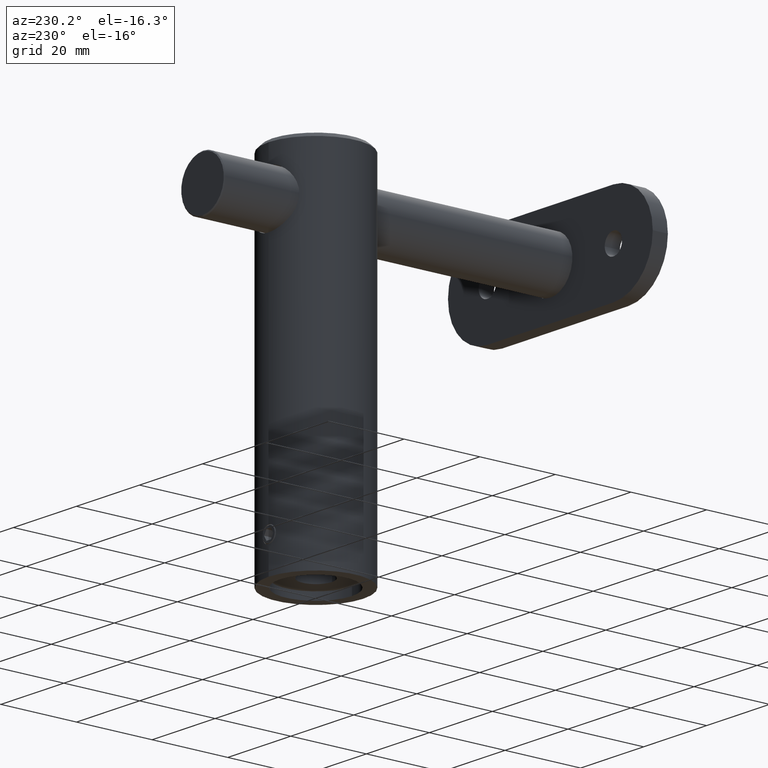
[diagram: clean part render]
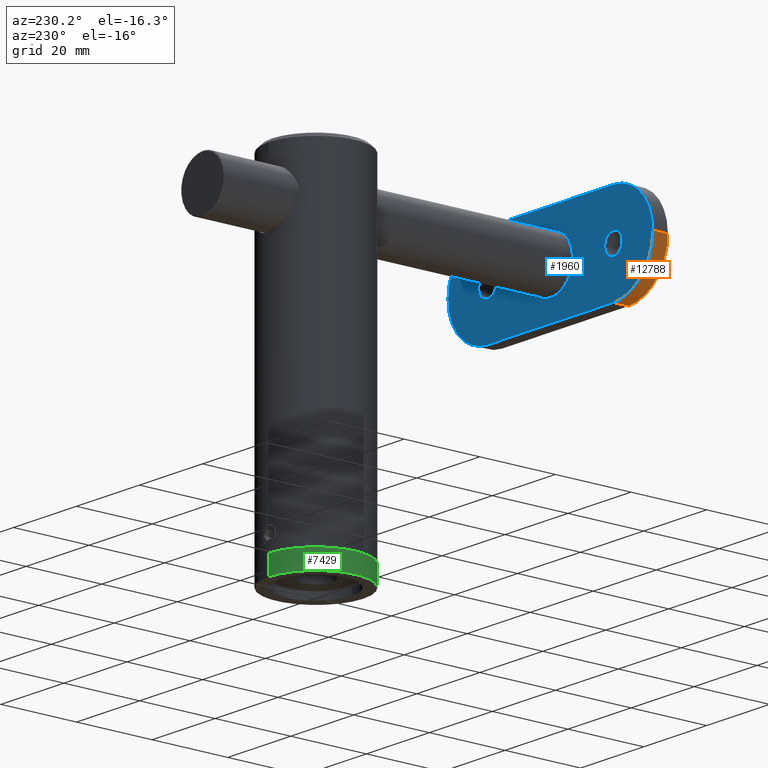
[diagram: same view with three faces highlighted in distinct colors, each labeled with its STEP entity id]
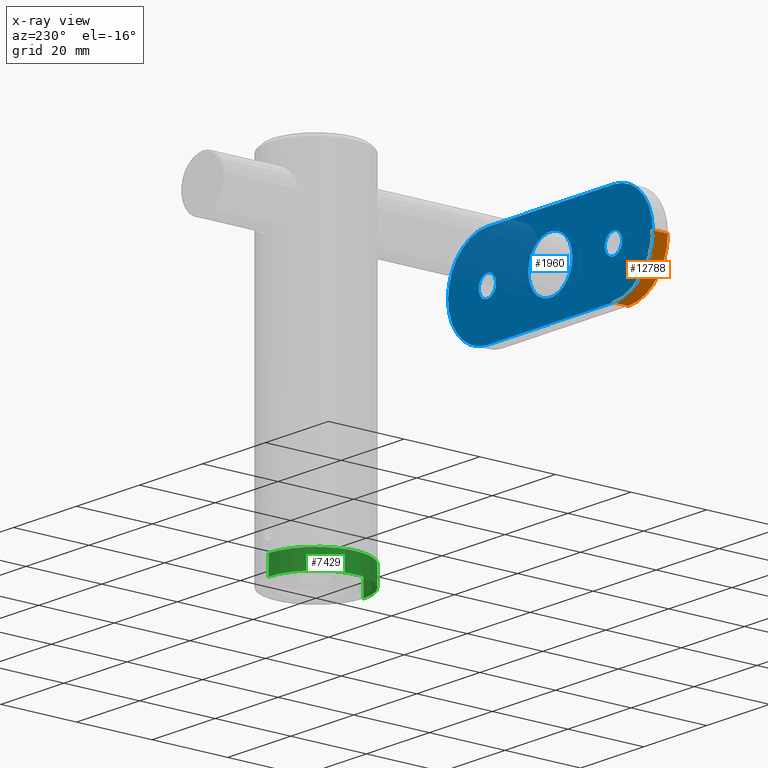
[diagram: x-ray of the same camera — body ghosted, the three highlighted faces saturated]
A machine part, auxiliary view with three faces highlighted in distinct colors.
The next image is the same camera in x-ray (body ghosted, the three faces saturated) — at least one of them is partly hidden behind the body in this view.
Their STEP definitions:

[orange] entity #12788 — the highlighted cylindrical surface (partial cylindrical patch) has radius 12.5 mm, axis along (-0, 1, -0).
#353 = CARTESIAN_POINT ( 'NONE',  ( 0.000000000000000000, 0.000000000000000000, 20.00000000000000000 ) ) ;
#1165 = VERTEX_POINT ( 'NONE', #12166 ) ;
#1495 = ORIENTED_EDGE ( 'NONE', *, *, #9786, .F. ) ;
#1995 = DIRECTION ( 'NONE',  ( 0.000000000000000000, -1.000000000000000000, 0.000000000000000000 ) ) ;
#2235 = DIRECTION ( 'NONE',  ( 0.000000000000000000, 1.000000000000000000, 0.000000000000000000 ) ) ;
#3309 = LINE ( 'NONE', #3579, #17203 ) ;
#3579 = CARTESIAN_POINT ( 'NONE',  ( 12.49999999999999645, -2.000000000000001776, 20.00000000000000000 ) ) ;
#5384 = DIRECTION ( 'NONE',  ( -0.000000000000000000, -1.000000000000000000, -0.000000000000000000 ) ) ;
#5651 = EDGE_LOOP ( 'NONE', ( #10635, #17782, #7111, #1495 ) ) ;
#6243 = AXIS2_PLACEMENT_3D ( 'NONE', #7435, #14838, #18199 ) ;
#7111 = ORIENTED_EDGE ( 'NONE', *, *, #18127, .F. ) ;
#7435 = CARTESIAN_POINT ( 'NONE',  ( 0.000000000000000000, 2.000000000000001776, 20.00000000000000000 ) ) ;
#8357 = CARTESIAN_POINT ( 'NONE',  ( 0.000000000000000000, -2.000000000000001776, 20.00000000000000000 ) ) ;
#8793 = CIRCLE ( 'NONE', #6243, 12.50000000000000000 ) ;
#9273 = EDGE_CURVE ( 'NONE', #13318, #1165, #3309, .T. ) ;
#9432 = AXIS2_PLACEMENT_3D ( 'NONE', #8357, #19173, #19107 ) ;
#9786 = EDGE_CURVE ( 'NONE', #1165, #14601, #10234, .T. ) ;
#9919 = LINE ( 'NONE', #15768, #13302 ) ;
#10234 = CIRCLE ( 'NONE', #9432, 12.50000000000000000 ) ;
#10635 = ORIENTED_EDGE ( 'NONE', *, *, #9273, .F. ) ;
#11116 = EDGE_CURVE ( 'NONE', #12173, #13318, #8793, .T. ) ;
#11615 = DIRECTION ( 'NONE',  ( 0.000000000000000000, 0.000000000000000000, -1.000000000000000000 ) ) ;
#12165 = CARTESIAN_POINT ( 'NONE',  ( 0.000000000000000000, -2.000000000000001776, 32.50000000000000000 ) ) ;
#12166 = CARTESIAN_POINT ( 'NONE',  ( 12.49999999999999645, -2.000000000000001776, 20.00000000000000000 ) ) ;
#12173 = VERTEX_POINT ( 'NONE', #14334 ) ;
#12422 = AXIS2_PLACEMENT_3D ( 'NONE', #353, #1995, #11615 ) ;
#12788 = ADVANCED_FACE ( 'NONE', ( #13799 ), #13330, .T. ) ;
#13302 = VECTOR ( 'NONE', #2235, 1000.000000000000000 ) ;
#13318 = VERTEX_POINT ( 'NONE', #18192 ) ;
#13330 = CYLINDRICAL_SURFACE ( 'NONE', #12422, 12.50000000000000000 ) ;
#13799 = FACE_OUTER_BOUND ( 'NONE', #5651, .T. ) ;
#14334 = CARTESIAN_POINT ( 'NONE',  ( 0.000000000000000000, 2.000000000000001776, 32.50000000000000000 ) ) ;
#14601 = VERTEX_POINT ( 'NONE', #12165 ) ;
#14838 = DIRECTION ( 'NONE',  ( -0.000000000000000000, 1.000000000000000000, -0.000000000000000000 ) ) ;
#15768 = CARTESIAN_POINT ( 'NONE',  ( 0.000000000000000000, 2.000000000000001776, 32.50000000000000000 ) ) ;
#17203 = VECTOR ( 'NONE', #5384, 1000.000000000000000 ) ;
#17782 = ORIENTED_EDGE ( 'NONE', *, *, #11116, .F. ) ;
#18127 = EDGE_CURVE ( 'NONE', #14601, #12173, #9919, .T. ) ;
#18192 = CARTESIAN_POINT ( 'NONE',  ( 12.49999999999999645, 2.000000000000001776, 20.00000000000000000 ) ) ;
#18199 = DIRECTION ( 'NONE',  ( 0.000000000000000000, 0.000000000000000000, -1.000000000000000000 ) ) ;
#19107 = DIRECTION ( 'NONE',  ( 0.000000000000000000, 0.000000000000000000, 1.000000000000000000 ) ) ;
#19173 = DIRECTION ( 'NONE',  ( -0.000000000000000000, -1.000000000000000000, -0.000000000000000000 ) ) ;

[blue] entity #1960 — the highlighted planar face has unit normal (0, -1, 0).
#104 = CIRCLE ( 'NONE', #9933, 7.000000000000000000 ) ;
#111 = EDGE_CURVE ( 'NONE', #3975, #14465, #104, .T. ) ;
#531 = EDGE_CURVE ( 'NONE', #12553, #3410, #6350, .T. ) ;
#586 = CARTESIAN_POINT ( 'NONE',  ( 0.000000000000000000, -2.000000000000001776, -20.00000000000000000 ) ) ;
#801 = ORIENTED_EDGE ( 'NONE', *, *, #13180, .T. ) ;
#1046 = CIRCLE ( 'NONE', #1830, 2.749999999999999112 ) ;
#1093 = CIRCLE ( 'NONE', #16552, 12.50000000000000000 ) ;
#1165 = VERTEX_POINT ( 'NONE', #12166 ) ;
#1171 = DIRECTION ( 'NONE',  ( -0.000000000000000000, -1.000000000000000000, -0.000000000000000000 ) ) ;
#1282 = CIRCLE ( 'NONE', #12477, 12.50000000000000000 ) ;
#1601 = LINE ( 'NONE', #19324, #5202 ) ;
#1641 = CARTESIAN_POINT ( 'NONE',  ( 0.000000000000000000, -2.000000000000001776, 0.000000000000000000 ) ) ;
#1699 = CARTESIAN_POINT ( 'NONE',  ( -12.50000000000001066, -2.000000000000001776, 32.50000000000005684 ) ) ;
#1830 = AXIS2_PLACEMENT_3D ( 'NONE', #5307, #15883, #14475 ) ;
#1960 = ADVANCED_FACE ( 'NONE', ( #8954, #10643, #13289, #19770 ), #7763, .F. ) ;
#2005 = EDGE_CURVE ( 'NONE', #10547, #3079, #1046, .T. ) ;
#2378 = DIRECTION ( 'NONE',  ( 0.000000000000000000, 0.000000000000000000, 1.000000000000000000 ) ) ;
#2446 = EDGE_CURVE ( 'NONE', #14601, #13108, #1282, .T. ) ;
#3079 = VERTEX_POINT ( 'NONE', #10242 ) ;
#3081 = EDGE_CURVE ( 'NONE', #3410, #12553, #7949, .T. ) ;
#3236 = DIRECTION ( 'NONE',  ( 0.000000000000000000, 0.000000000000000000, -1.000000000000000000 ) ) ;
#3410 = VERTEX_POINT ( 'NONE', #3868 ) ;
#3868 = CARTESIAN_POINT ( 'NONE',  ( 3.367778697655220026E-16, -2.000000000000001776, -22.75000000000000000 ) ) ;
#3975 = VERTEX_POINT ( 'NONE', #12642 ) ;
#4046 = CARTESIAN_POINT ( 'NONE',  ( 0.000000000000000000, -2.000000000000001776, 20.00000000000000000 ) ) ;
#4103 = ORIENTED_EDGE ( 'NONE', *, *, #4977, .F. ) ;
#4290 = AXIS2_PLACEMENT_3D ( 'NONE', #18727, #15825, #15755 ) ;
#4337 = DIRECTION ( 'NONE',  ( 0.000000000000000000, 1.000000000000000000, 0.000000000000000000 ) ) ;
#4403 = DIRECTION ( 'NONE',  ( 0.000000000000000000, 0.000000000000000000, 1.000000000000000000 ) ) ;
#4478 = CARTESIAN_POINT ( 'NONE',  ( 0.000000000000000000, -2.000000000000001776, 20.00000000000000000 ) ) ;
#4836 = DIRECTION ( 'NONE',  ( 0.000000000000000000, 1.000000000000000000, 0.000000000000000000 ) ) ;
#4859 = ORIENTED_EDGE ( 'NONE', *, *, #11843, .T. ) ;
#4895 = ORIENTED_EDGE ( 'NONE', *, *, #9786, .T. ) ;
#4977 = EDGE_CURVE ( 'NONE', #14465, #3975, #7671, .T. ) ;
#5019 = DIRECTION ( 'NONE',  ( -0.000000000000000000, -1.000000000000000000, -0.000000000000000000 ) ) ;
#5059 = ORIENTED_EDGE ( 'NONE', *, *, #11090, .F. ) ;
#5202 = VECTOR ( 'NONE', #13612, 1000.000000000000000 ) ;
#5307 = CARTESIAN_POINT ( 'NONE',  ( 0.000000000000000000, -2.000000000000001776, 20.00000000000000000 ) ) ;
#5699 = DIRECTION ( 'NONE',  ( 0.000000000000000000, 1.000000000000000000, 0.000000000000000000 ) ) ;
#6350 = CIRCLE ( 'NONE', #17918, 2.749999999999999112 ) ;
#6640 = VECTOR ( 'NONE', #19741, 1000.000000000000000 ) ;
#6900 = VERTEX_POINT ( 'NONE', #15982 ) ;
#7671 = CIRCLE ( 'NONE', #4290, 7.000000000000000000 ) ;
#7763 = PLANE ( 'NONE',  #14151 ) ;
#7949 = CIRCLE ( 'NONE', #8864, 2.749999999999999112 ) ;
#7993 = CARTESIAN_POINT ( 'NONE',  ( 0.000000000000000000, -2.000000000000001776, -20.00000000000000355 ) ) ;
#8043 = EDGE_LOOP ( 'NONE', ( #801, #10752, #5059, #4895, #18688, #4859 ) ) ;
#8357 = CARTESIAN_POINT ( 'NONE',  ( 0.000000000000000000, -2.000000000000001776, 20.00000000000000000 ) ) ;
#8568 = CARTESIAN_POINT ( 'NONE',  ( 12.49999999999999645, -2.000000000000001776, -20.00000000000000355 ) ) ;
#8643 = CARTESIAN_POINT ( 'NONE',  ( 0.000000000000000000, -2.000000000000001776, -32.50000000000000000 ) ) ;
#8864 = AXIS2_PLACEMENT_3D ( 'NONE', #19308, #5699, #11651 ) ;
#8954 = FACE_BOUND ( 'NONE', #12730, .T. ) ;
#9087 = CARTESIAN_POINT ( 'NONE',  ( 3.367778697655220026E-16, -2.000000000000001776, 17.25000000000000000 ) ) ;
#9134 = ORIENTED_EDGE ( 'NONE', *, *, #17484, .T. ) ;
#9381 = VERTEX_POINT ( 'NONE', #8643 ) ;
#9432 = AXIS2_PLACEMENT_3D ( 'NONE', #8357, #19173, #19107 ) ;
#9463 = CIRCLE ( 'NONE', #19828, 2.749999999999999112 ) ;
#9786 = EDGE_CURVE ( 'NONE', #1165, #14601, #10234, .T. ) ;
#9830 = DIRECTION ( 'NONE',  ( 0.000000000000000000, 1.000000000000000000, 0.000000000000000000 ) ) ;
#9933 = AXIS2_PLACEMENT_3D ( 'NONE', #1641, #15419, #3236 ) ;
#10214 = ORIENTED_EDGE ( 'NONE', *, *, #3081, .T. ) ;
#10234 = CIRCLE ( 'NONE', #9432, 12.50000000000000000 ) ;
#10242 = CARTESIAN_POINT ( 'NONE',  ( 0.000000000000000000, -2.000000000000001776, 22.75000000000000000 ) ) ;
#10294 = CARTESIAN_POINT ( 'NONE',  ( 8.572527594031473190E-16, -2.000000000000001776, 7.000000000000000000 ) ) ;
#10547 = VERTEX_POINT ( 'NONE', #9087 ) ;
#10578 = EDGE_LOOP ( 'NONE', ( #18229, #10214 ) ) ;
#10643 = FACE_BOUND ( 'NONE', #19029, .T. ) ;
#10752 = ORIENTED_EDGE ( 'NONE', *, *, #15954, .T. ) ;
#11090 = EDGE_CURVE ( 'NONE', #1165, #19327, #14074, .T. ) ;
#11099 = DIRECTION ( 'NONE',  ( 0.000000000000000000, 0.000000000000000000, 1.000000000000000000 ) ) ;
#11651 = DIRECTION ( 'NONE',  ( 0.000000000000000000, 0.000000000000000000, 1.000000000000000000 ) ) ;
#11821 = DIRECTION ( 'NONE',  ( 8.881784197001252323E-16, 0.000000000000000000, 1.000000000000000000 ) ) ;
#11843 = EDGE_CURVE ( 'NONE', #13108, #6900, #1601, .T. ) ;
#11972 = CARTESIAN_POINT ( 'NONE',  ( 12.49999999999999645, -2.000000000000001776, 32.50000000000000000 ) ) ;
#12165 = CARTESIAN_POINT ( 'NONE',  ( 0.000000000000000000, -2.000000000000001776, 32.50000000000000000 ) ) ;
#12166 = CARTESIAN_POINT ( 'NONE',  ( 12.49999999999999645, -2.000000000000001776, 20.00000000000000000 ) ) ;
#12477 = AXIS2_PLACEMENT_3D ( 'NONE', #4046, #16043, #2378 ) ;
#12553 = VERTEX_POINT ( 'NONE', #14118 ) ;
#12642 = CARTESIAN_POINT ( 'NONE',  ( 0.000000000000000000, -2.000000000000001776, -7.000000000000000000 ) ) ;
#12730 = EDGE_LOOP ( 'NONE', ( #15016, #4103 ) ) ;
#13108 = VERTEX_POINT ( 'NONE', #19276 ) ;
#13180 = EDGE_CURVE ( 'NONE', #6900, #9381, #1093, .T. ) ;
#13289 = FACE_BOUND ( 'NONE', #10578, .T. ) ;
#13421 = ORIENTED_EDGE ( 'NONE', *, *, #2005, .T. ) ;
#13612 = DIRECTION ( 'NONE',  ( 0.000000000000000000, 0.000000000000000000, -1.000000000000000000 ) ) ;
#14074 = LINE ( 'NONE', #11972, #6640 ) ;
#14118 = CARTESIAN_POINT ( 'NONE',  ( 0.000000000000000000, -2.000000000000001776, -17.25000000000000000 ) ) ;
#14151 = AXIS2_PLACEMENT_3D ( 'NONE', #1699, #4836, #15493 ) ;
#14465 = VERTEX_POINT ( 'NONE', #10294 ) ;
#14475 = DIRECTION ( 'NONE',  ( 0.000000000000000000, 0.000000000000000000, 1.000000000000000000 ) ) ;
#14601 = VERTEX_POINT ( 'NONE', #12165 ) ;
#15016 = ORIENTED_EDGE ( 'NONE', *, *, #111, .F. ) ;
#15419 = DIRECTION ( 'NONE',  ( 0.000000000000000000, -1.000000000000000000, 0.000000000000000000 ) ) ;
#15493 = DIRECTION ( 'NONE',  ( 0.000000000000000000, 0.000000000000000000, 1.000000000000000000 ) ) ;
#15755 = DIRECTION ( 'NONE',  ( 0.000000000000000000, 0.000000000000000000, -1.000000000000000000 ) ) ;
#15825 = DIRECTION ( 'NONE',  ( 0.000000000000000000, -1.000000000000000000, 0.000000000000000000 ) ) ;
#15883 = DIRECTION ( 'NONE',  ( 0.000000000000000000, 1.000000000000000000, 0.000000000000000000 ) ) ;
#15954 = EDGE_CURVE ( 'NONE', #9381, #19327, #17420, .T. ) ;
#15982 = CARTESIAN_POINT ( 'NONE',  ( -12.50000000000001066, -2.000000000000001776, -20.00000000000000355 ) ) ;
#16043 = DIRECTION ( 'NONE',  ( -0.000000000000000000, -1.000000000000000000, -0.000000000000000000 ) ) ;
#16470 = AXIS2_PLACEMENT_3D ( 'NONE', #7993, #5019, #11099 ) ;
#16552 = AXIS2_PLACEMENT_3D ( 'NONE', #19536, #1171, #11821 ) ;
#17420 = CIRCLE ( 'NONE', #16470, 12.50000000000000000 ) ;
#17484 = EDGE_CURVE ( 'NONE', #3079, #10547, #9463, .T. ) ;
#17918 = AXIS2_PLACEMENT_3D ( 'NONE', #586, #9830, #19232 ) ;
#18229 = ORIENTED_EDGE ( 'NONE', *, *, #531, .T. ) ;
#18688 = ORIENTED_EDGE ( 'NONE', *, *, #2446, .T. ) ;
#18727 = CARTESIAN_POINT ( 'NONE',  ( 0.000000000000000000, -2.000000000000001776, 0.000000000000000000 ) ) ;
#19029 = EDGE_LOOP ( 'NONE', ( #9134, #13421 ) ) ;
#19107 = DIRECTION ( 'NONE',  ( 0.000000000000000000, 0.000000000000000000, 1.000000000000000000 ) ) ;
#19173 = DIRECTION ( 'NONE',  ( -0.000000000000000000, -1.000000000000000000, -0.000000000000000000 ) ) ;
#19232 = DIRECTION ( 'NONE',  ( 0.000000000000000000, 0.000000000000000000, 1.000000000000000000 ) ) ;
#19276 = CARTESIAN_POINT ( 'NONE',  ( -12.50000000000001066, -2.000000000000001776, 20.00000000000000000 ) ) ;
#19308 = CARTESIAN_POINT ( 'NONE',  ( 0.000000000000000000, -2.000000000000001776, -20.00000000000000000 ) ) ;
#19324 = CARTESIAN_POINT ( 'NONE',  ( -12.50000000000001066, -2.000000000000001776, 32.50000000000005684 ) ) ;
#19327 = VERTEX_POINT ( 'NONE', #8568 ) ;
#19536 = CARTESIAN_POINT ( 'NONE',  ( 0.000000000000000000, -2.000000000000001776, -20.00000000000000355 ) ) ;
#19741 = DIRECTION ( 'NONE',  ( 0.000000000000000000, 0.000000000000000000, -1.000000000000000000 ) ) ;
#19770 = FACE_OUTER_BOUND ( 'NONE', #8043, .T. ) ;
#19828 = AXIS2_PLACEMENT_3D ( 'NONE', #4478, #4337, #4403 ) ;

[green] entity #7429 — the highlighted cylindrical surface (partial cylindrical patch) has radius 12.5 mm, axis along (0, 0, -1).
#56 = VECTOR ( 'NONE', #9102, 1000.000000000000000 ) ;
#313 = ORIENTED_EDGE ( 'NONE', *, *, #19041, .F. ) ;
#875 = DIRECTION ( 'NONE',  ( -0.000000000000000000, 1.224646799147353207E-16, -1.000000000000000000 ) ) ;
#1413 = ORIENTED_EDGE ( 'NONE', *, *, #9518, .T. ) ;
#3436 = CARTESIAN_POINT ( 'NONE',  ( 0.000000000000000000, 1.874699728327322119E-31, -1.530808498934191521E-15 ) ) ;
#3483 = CARTESIAN_POINT ( 'NONE',  ( 0.000000000000000000, 12.50000000000000000, 0.000000000000000000 ) ) ;
#3522 = AXIS2_PLACEMENT_3D ( 'NONE', #5349, #9887, #11503 ) ;
#3576 = CYLINDRICAL_SURFACE ( 'NONE', #3522, 12.50000000000000000 ) ;
#4460 = EDGE_CURVE ( 'NONE', #13429, #7284, #11089, .T. ) ;
#4788 = DIRECTION ( 'NONE',  ( 0.000000000000000000, 1.000000000000000000, 1.224646799147353207E-16 ) ) ;
#4974 = AXIS2_PLACEMENT_3D ( 'NONE', #19196, #5514, #16226 ) ;
#5349 = CARTESIAN_POINT ( 'NONE',  ( 0.000000000000000000, 0.000000000000000000, 0.000000000000000000 ) ) ;
#5514 = DIRECTION ( 'NONE',  ( -0.000000000000000000, 1.224646799147353207E-16, -1.000000000000000000 ) ) ;
#5713 = LINE ( 'NONE', #14806, #12179 ) ;
#6070 = LINE ( 'NONE', #7544, #56 ) ;
#7284 = VERTEX_POINT ( 'NONE', #3483 ) ;
#7429 = ADVANCED_FACE ( 'NONE', ( #13404 ), #3576, .T. ) ;
#7544 = CARTESIAN_POINT ( 'NONE',  ( 1.530808498934191521E-15, -12.50000000000000000, -1.530808498934191521E-15 ) ) ;
#7987 = AXIS2_PLACEMENT_3D ( 'NONE', #3436, #14157, #4788 ) ;
#8394 = EDGE_CURVE ( 'NONE', #12016, #7284, #5713, .T. ) ;
#9102 = DIRECTION ( 'NONE',  ( -0.000000000000000000, 1.224646799147353207E-16, -1.000000000000000000 ) ) ;
#9518 = EDGE_CURVE ( 'NONE', #16897, #12016, #18918, .T. ) ;
#9887 = DIRECTION ( 'NONE',  ( -0.000000000000000000, 1.224646799147353207E-16, -1.000000000000000000 ) ) ;
#10923 = CARTESIAN_POINT ( 'NONE',  ( 0.000000000000000000, 12.50000000000000000, 5.000000000000000000 ) ) ;
#11089 = CIRCLE ( 'NONE', #7987, 12.50000000000000000 ) ;
#11503 = DIRECTION ( 'NONE',  ( 0.000000000000000000, 1.000000000000000000, 1.224646799147353207E-16 ) ) ;
#12016 = VERTEX_POINT ( 'NONE', #10923 ) ;
#12179 = VECTOR ( 'NONE', #875, 1000.000000000000000 ) ;
#13404 = FACE_OUTER_BOUND ( 'NONE', #17539, .T. ) ;
#13429 = VERTEX_POINT ( 'NONE', #18596 ) ;
#14001 = ORIENTED_EDGE ( 'NONE', *, *, #8394, .T. ) ;
#14157 = DIRECTION ( 'NONE',  ( -0.000000000000000000, 1.224646799147353207E-16, -1.000000000000000000 ) ) ;
#14336 = ORIENTED_EDGE ( 'NONE', *, *, #4460, .F. ) ;
#14806 = CARTESIAN_POINT ( 'NONE',  ( 0.000000000000000000, 12.50000000000000000, 1.530808498934191521E-15 ) ) ;
#16226 = DIRECTION ( 'NONE',  ( 0.000000000000000000, 1.000000000000000000, 1.387778780781445676E-16 ) ) ;
#16295 = CARTESIAN_POINT ( 'NONE',  ( 1.530808498934191521E-15, -12.50000000000000000, 4.999999999999996447 ) ) ;
#16897 = VERTEX_POINT ( 'NONE', #16295 ) ;
#17539 = EDGE_LOOP ( 'NONE', ( #313, #1413, #14001, #14336 ) ) ;
#18596 = CARTESIAN_POINT ( 'NONE',  ( 1.530808498934191521E-15, -12.50000000000000000, -3.061616997868383043E-15 ) ) ;
#18918 = CIRCLE ( 'NONE', #4974, 12.50000000000000000 ) ;
#19041 = EDGE_CURVE ( 'NONE', #16897, #13429, #6070, .T. ) ;
#19196 = CARTESIAN_POINT ( 'NONE',  ( 0.000000000000000000, -6.123233995736764310E-16, 4.999999999999998224 ) ) ;